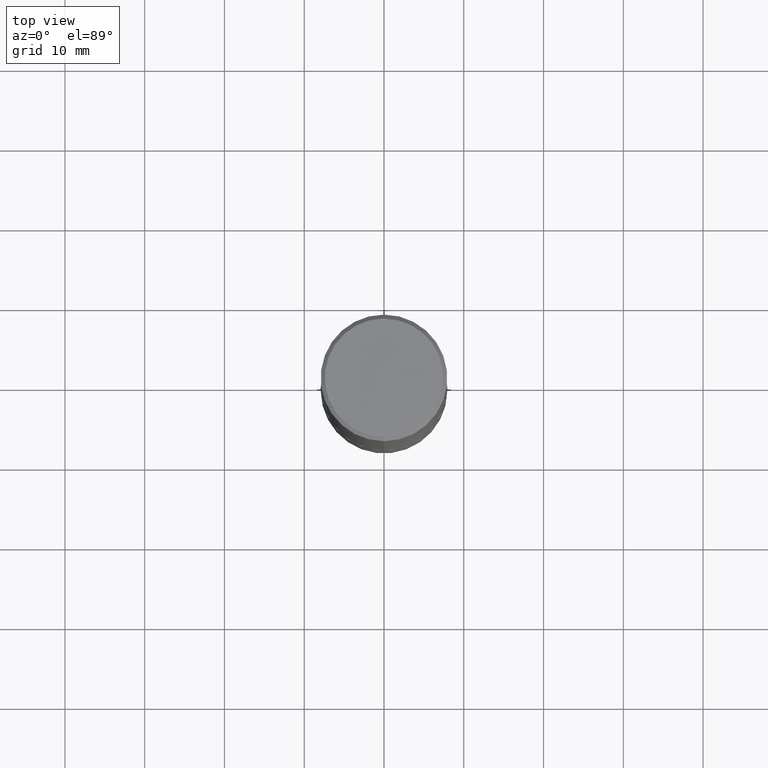
[diagram: clean part render]
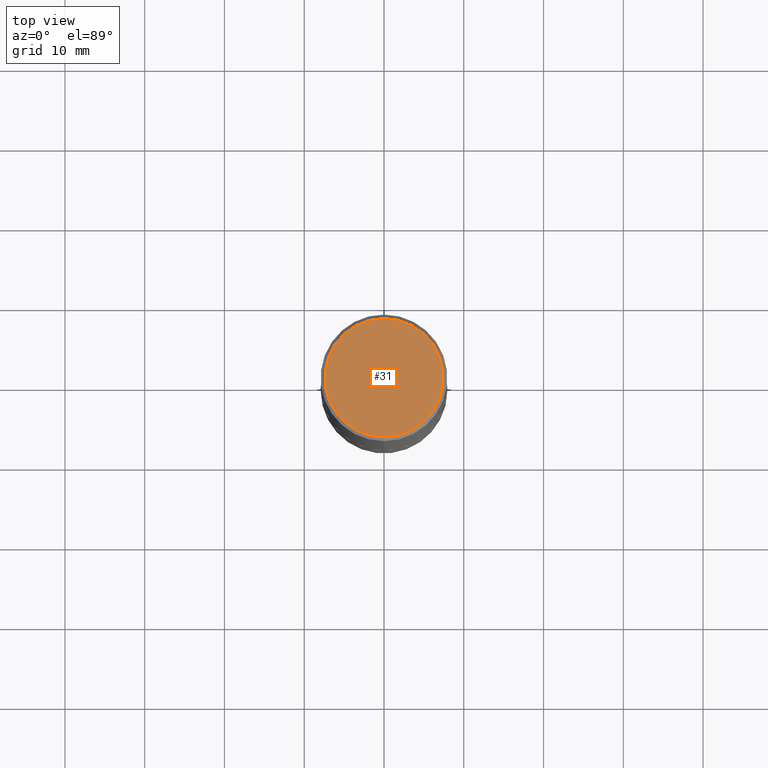
[diagram: same view with one face highlighted and labeled with its STEP entity id]
A machine part, top view. The second image highlights one B-rep face of the part: STEP entity #31.
In plain terms, the highlighted planar face has unit normal (0, -0, -1).
Its self-contained STEP definition (entity closure, byte-faithful):
#3 = EDGE_CURVE ( 'NONE', #83, #241, #281, .T. ) ;
#10 = CARTESIAN_POINT ( 'NONE',  ( -2.075300644325888282E-15, -0.2925000000000001488, 8.497539228082782991E-16 ) ) ;
#27 = ORIENTED_EDGE ( 'NONE', *, *, #305, .T. ) ;
#31 = ADVANCED_FACE ( 'NONE', ( #118 ), #224, .F. ) ;
#35 = ORIENTED_EDGE ( 'NONE', *, *, #3, .T. ) ;
#69 = DIRECTION ( 'NONE',  ( -6.982962677686265922E-15, -1.000000000000000000, 3.490175579528058296E-15 ) ) ;
#77 = AXIS2_PLACEMENT_3D ( 'NONE', #237, #364, #69 ) ;
#83 = VERTEX_POINT ( 'NONE', #374 ) ;
#84 = CIRCLE ( 'NONE', #225, 0.2925000000000001488 ) ;
#101 = DIRECTION ( 'NONE',  ( -6.982962677686265922E-15, -1.000000000000000000, 3.490175579528058296E-15 ) ) ;
#115 = AXIS2_PLACEMENT_3D ( 'NONE', #150, #210, #154 ) ;
#118 = FACE_OUTER_BOUND ( 'NONE', #333, .T. ) ;
#150 = CARTESIAN_POINT ( 'NONE',  ( 2.042516583223233723E-15, 0.2925000000000001488, -1.106437574113797536E-15 ) ) ;
#154 = DIRECTION ( 'NONE',  ( 6.982962677686265922E-15, 1.000000000000000000, -3.490175579528058691E-15 ) ) ;
#210 = DIRECTION ( 'NONE',  ( 2.446380613041465709E-29, -3.490175579528058691E-15, -1.000000000000000000 ) ) ;
#224 = PLANE ( 'NONE',  #115 ) ;
#225 = AXIS2_PLACEMENT_3D ( 'NONE', #325, #329, #101 ) ;
#237 = CARTESIAN_POINT ( 'NONE',  ( 4.186306054923449458E-45, -5.972473409670785884E-31, -1.711224342036793187E-16 ) ) ;
#241 = VERTEX_POINT ( 'NONE', #10 ) ;
#281 = CIRCLE ( 'NONE', #77, 0.2925000000000001488 ) ;
#305 = EDGE_CURVE ( 'NONE', #241, #83, #84, .T. ) ;
#325 = CARTESIAN_POINT ( 'NONE',  ( 4.186306054923449458E-45, -5.972473409670785884E-31, -1.711224342036793187E-16 ) ) ;
#329 = DIRECTION ( 'NONE',  ( -2.446380613041465709E-29, 3.490175579528058691E-15, 1.000000000000000000 ) ) ;
#333 = EDGE_LOOP ( 'NONE', ( #35, #27 ) ) ;
#364 = DIRECTION ( 'NONE',  ( -2.446380613041465709E-29, 3.490175579528058691E-15, 1.000000000000000000 ) ) ;
#374 = CARTESIAN_POINT ( 'NONE',  ( 2.112346210000096232E-15, 0.2925000000000001488, -1.191998791215637084E-15 ) ) ;